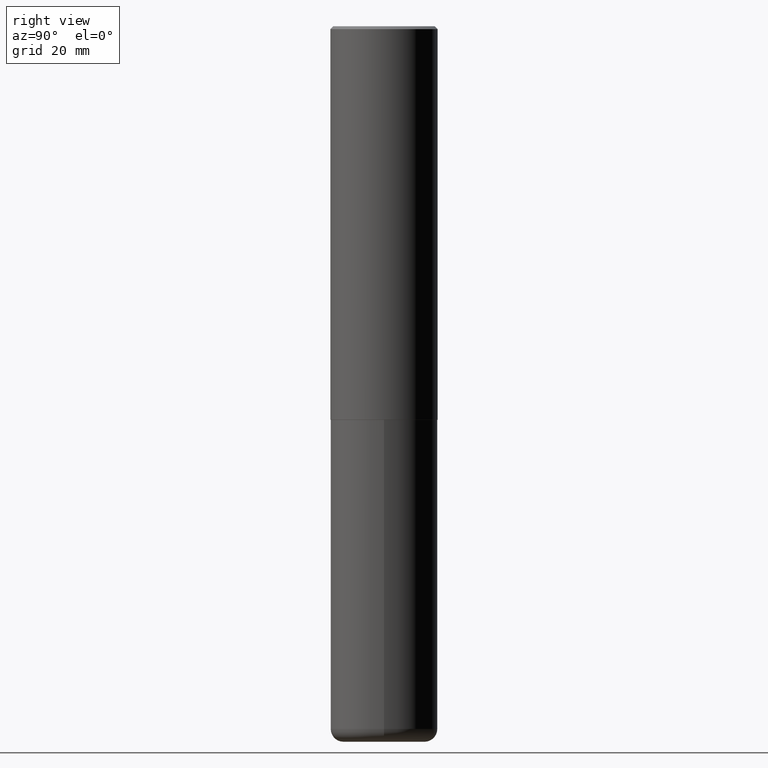
[diagram: clean part render]
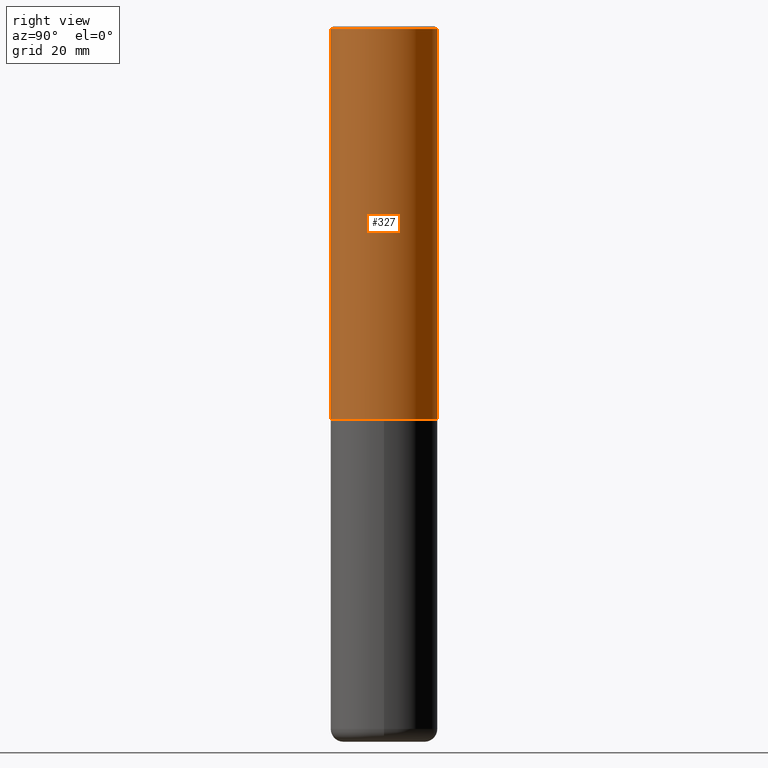
[diagram: same view with one face highlighted and labeled with its STEP entity id]
A machine part, right view. The second image highlights one B-rep face of the part: STEP entity #327.
In plain terms, the highlighted cylindrical surface (partial cylindrical patch) has radius 9.525 mm, axis along (-0, 0, 1).
Its self-contained STEP definition (entity closure, byte-faithful):
#12 = CARTESIAN_POINT ( 'NONE',  ( 0.000000000000000000, 0.000000000000000000, 0.000000000000000000 ) ) ;
#15 = LINE ( 'NONE', #266, #222 ) ;
#30 = ORIENTED_EDGE ( 'NONE', *, *, #349, .F. ) ;
#36 = CARTESIAN_POINT ( 'NONE',  ( -2.572686749164323547E-15, -0.3750000000000001110, -0.01999999999999877570 ) ) ;
#45 = DIRECTION ( 'NONE',  ( -6.982962677686266711E-15, -1.000000000000000000, 3.490662795793665951E-15 ) ) ;
#54 = VERTEX_POINT ( 'NONE', #174 ) ;
#58 = CIRCLE ( 'NONE', #227, 0.3750000000000003886 ) ;
#65 = EDGE_CURVE ( 'NONE', #325, #54, #58, .T. ) ;
#66 = VERTEX_POINT ( 'NONE', #149 ) ;
#94 = DIRECTION ( 'NONE',  ( -2.446040391741596606E-29, 3.490662795793665557E-15, 1.000000000000000000 ) ) ;
#95 = EDGE_LOOP ( 'NONE', ( #154, #183, #97, #30 ) ) ;
#97 = ORIENTED_EDGE ( 'NONE', *, *, #139, .F. ) ;
#105 = DIRECTION ( 'NONE',  ( -2.446040391741596606E-29, 3.490662795793665557E-15, 1.000000000000000000 ) ) ;
#116 = DIRECTION ( 'NONE',  ( -6.982962677686265922E-15, -1.000000000000000000, 2.913971193241877611E-15 ) ) ;
#117 = DIRECTION ( 'NONE',  ( -2.446040391741596606E-29, 3.490662795793665557E-15, 1.000000000000000000 ) ) ;
#139 = EDGE_CURVE ( 'NONE', #224, #66, #234, .T. ) ;
#146 = VECTOR ( 'NONE', #117, 39.37007874015748143 ) ;
#149 = CARTESIAN_POINT ( 'NONE',  ( 2.618611004132350411E-15, 0.3749999999999999445, -0.02000000000000139513 ) ) ;
#150 = LINE ( 'NONE', #409, #146 ) ;
#154 = ORIENTED_EDGE ( 'NONE', *, *, #65, .T. ) ;
#174 = CARTESIAN_POINT ( 'NONE',  ( 2.664535259100411196E-15, 0.3749999999999907296, -2.749000000000000998 ) ) ;
#175 = FACE_OUTER_BOUND ( 'NONE', #95, .T. ) ;
#183 = ORIENTED_EDGE ( 'NONE', *, *, #410, .T. ) ;
#222 = VECTOR ( 'NONE', #395, 39.37007874015748143 ) ;
#224 = VERTEX_POINT ( 'NONE', #36 ) ;
#227 = AXIS2_PLACEMENT_3D ( 'NONE', #230, #361, #116 ) ;
#230 = CARTESIAN_POINT ( 'NONE',  ( 6.724165036897648492E-29, -9.595832025636787455E-15, -2.749000000000000110 ) ) ;
#234 = CIRCLE ( 'NONE', #285, 0.3750000000000000555 ) ;
#236 = CYLINDRICAL_SURFACE ( 'NONE', #322, 0.3750000000000002220 ) ;
#266 = CARTESIAN_POINT ( 'NONE',  ( -2.618611004132351594E-15, -0.3750000000000002220, 1.308998548422625521E-15 ) ) ;
#275 = CARTESIAN_POINT ( 'NONE',  ( 4.892080783483214581E-31, -6.981325591587361238E-17, -0.02000000000000008715 ) ) ;
#285 = AXIS2_PLACEMENT_3D ( 'NONE', #275, #94, #411 ) ;
#292 = CARTESIAN_POINT ( 'NONE',  ( -2.618611004132284935E-15, -0.3750000000000099920, -2.748999999999999222 ) ) ;
#322 = AXIS2_PLACEMENT_3D ( 'NONE', #12, #105, #45 ) ;
#325 = VERTEX_POINT ( 'NONE', #292 ) ;
#327 = ADVANCED_FACE ( 'NONE', ( #175 ), #236, .T. ) ;
#349 = EDGE_CURVE ( 'NONE', #325, #224, #15, .T. ) ;
#361 = DIRECTION ( 'NONE',  ( -2.446040391741596606E-29, 3.490662795793665557E-15, 1.000000000000000000 ) ) ;
#395 = DIRECTION ( 'NONE',  ( -2.446040391741596606E-29, 3.490662795793665557E-15, 1.000000000000000000 ) ) ;
#409 = CARTESIAN_POINT ( 'NONE',  ( 2.664535259100376880E-15, 0.3750000000000002220, -1.308998548422625521E-15 ) ) ;
#410 = EDGE_CURVE ( 'NONE', #54, #66, #150, .T. ) ;
#411 = DIRECTION ( 'NONE',  ( -6.982962677686265922E-15, -1.000000000000000000, 3.494488891895536035E-15 ) ) ;